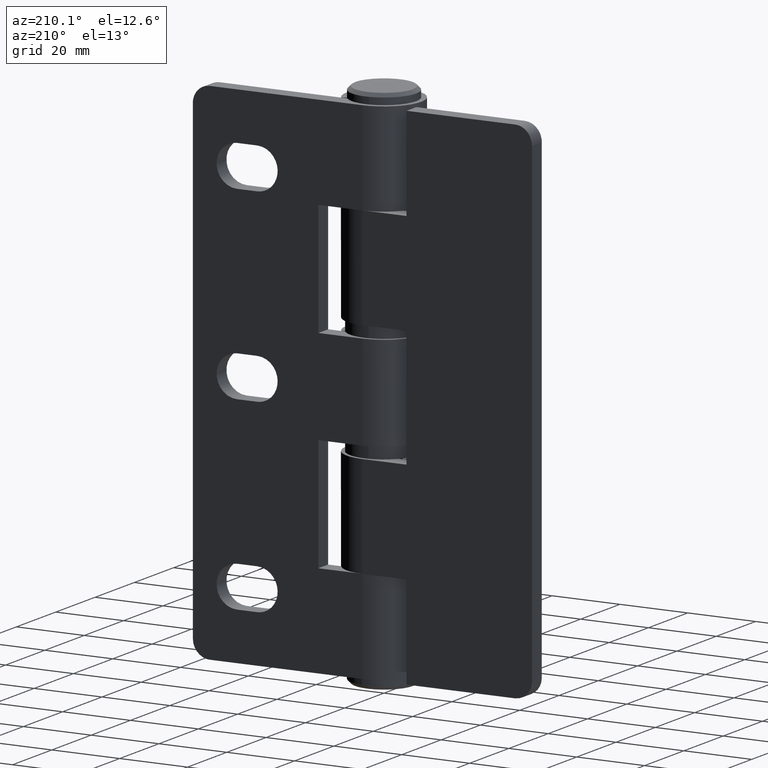
[diagram: clean part render]
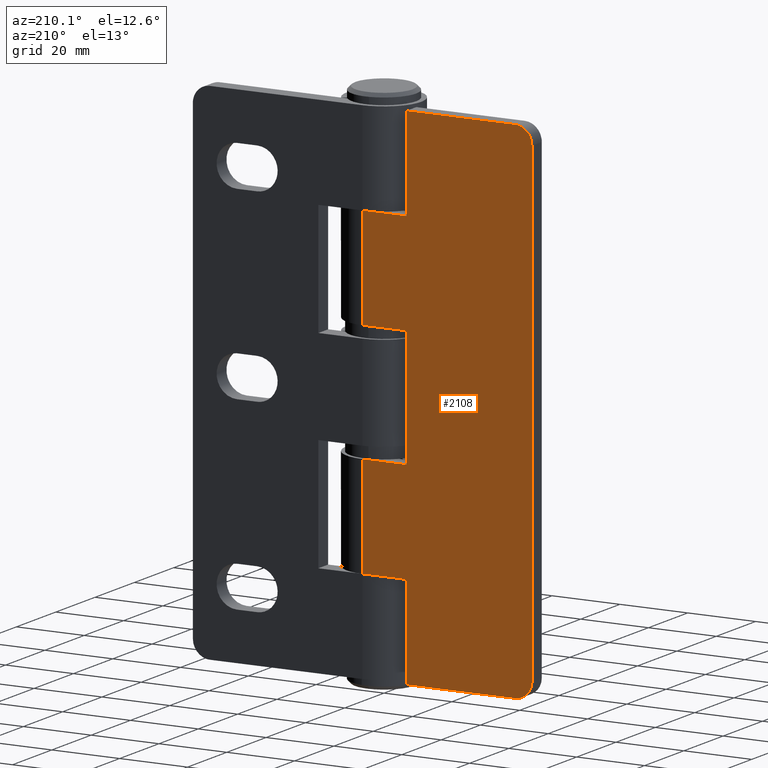
[diagram: same view with one face highlighted and labeled with its STEP entity id]
A machine part, auxiliary view. The second image highlights one B-rep face of the part: STEP entity #2108.
In plain terms, the highlighted face is a freeform B-spline surface patch.
Its self-contained STEP definition (entity closure, byte-faithful):
#1350=CARTESIAN_POINT('',(-13.0,11.0,122.500000000000000));
#1351=VERTEX_POINT('',#1350);
#1352=CARTESIAN_POINT('',(0.0,11.0,122.500000000000000));
#1353=VERTEX_POINT('',#1352);
#1354=CARTESIAN_POINT('',(-13.0,11.0,122.500000000000000));
#1355=CARTESIAN_POINT('',(0.0,11.0,122.500000000000000));
#1356=QUASI_UNIFORM_CURVE('',1,(#1354,#1355),.UNSPECIFIED.,.F.,.U.);
#1357=EDGE_CURVE('',#1351,#1353,#1356,.T.);
#1429=CARTESIAN_POINT('',(-13.0,11.0,150.0));
#1430=VERTEX_POINT('',#1429);
#1431=CARTESIAN_POINT('',(-13.0,11.0,150.0));
#1432=CARTESIAN_POINT('',(-13.0,11.0,122.500000000000000));
#1433=QUASI_UNIFORM_CURVE('',1,(#1431,#1432),.UNSPECIFIED.,.F.,.U.);
#1434=EDGE_CURVE('',#1430,#1351,#1433,.T.);
#1456=CARTESIAN_POINT('',(-13.0,11.0,57.500000000000000));
#1457=VERTEX_POINT('',#1456);
#1458=CARTESIAN_POINT('',(0.0,11.0,57.500000000000000));
#1459=VERTEX_POINT('',#1458);
#1460=CARTESIAN_POINT('',(-13.0,11.0,57.500000000000000));
#1461=CARTESIAN_POINT('',(0.0,11.0,57.500000000000000));
#1462=QUASI_UNIFORM_CURVE('',1,(#1460,#1461),.UNSPECIFIED.,.F.,.U.);
#1463=EDGE_CURVE('',#1457,#1459,#1462,.T.);
#1535=CARTESIAN_POINT('',(-13.0,11.0,92.500000000000000));
#1536=VERTEX_POINT('',#1535);
#1537=CARTESIAN_POINT('',(-13.0,11.0,92.500000000000000));
#1538=CARTESIAN_POINT('',(-13.0,11.0,57.500000000000000));
#1539=QUASI_UNIFORM_CURVE('',1,(#1537,#1538),.UNSPECIFIED.,.F.,.U.);
#1540=EDGE_CURVE('',#1536,#1457,#1539,.T.);
#1563=CARTESIAN_POINT('',(0.0,11.0,92.500000000000000));
#1564=VERTEX_POINT('',#1563);
#1565=CARTESIAN_POINT('',(0.0,11.0,92.500000000000000));
#1566=CARTESIAN_POINT('',(-13.0,11.0,92.500000000000000));
#1567=QUASI_UNIFORM_CURVE('',1,(#1565,#1566),.UNSPECIFIED.,.F.,.U.);
#1568=EDGE_CURVE('',#1564,#1536,#1567,.T.);
#1634=CARTESIAN_POINT('',(-13.0,11.0,0.0));
#1635=VERTEX_POINT('',#1634);
#1641=CARTESIAN_POINT('',(-13.0,11.0,27.500000000000000));
#1642=VERTEX_POINT('',#1641);
#1643=CARTESIAN_POINT('',(-13.0,11.0,27.500000000000000));
#1644=CARTESIAN_POINT('',(-13.0,11.0,0.0));
#1645=QUASI_UNIFORM_CURVE('',1,(#1643,#1644),.UNSPECIFIED.,.F.,.U.);
#1646=EDGE_CURVE('',#1642,#1635,#1645,.T.);
#1669=CARTESIAN_POINT('',(0.0,11.0,27.500000000000000));
#1670=VERTEX_POINT('',#1669);
#1671=CARTESIAN_POINT('',(0.0,11.0,27.500000000000000));
#1672=CARTESIAN_POINT('',(-13.0,11.0,27.500000000000000));
#1673=QUASI_UNIFORM_CURVE('',1,(#1671,#1672),.UNSPECIFIED.,.F.,.U.);
#1674=EDGE_CURVE('',#1670,#1642,#1673,.T.);
#1764=CARTESIAN_POINT('',(-50.0,11.0,5.0));
#1765=VERTEX_POINT('',#1764);
#1771=CARTESIAN_POINT('',(-45.0,11.0,0.0));
#1772=VERTEX_POINT('',#1771);
#1773=CARTESIAN_POINT('',(-45.0,11.0,0.0));
#1774=CARTESIAN_POINT('',(-49.999999999999986,11.0,0.0));
#1775=CARTESIAN_POINT('',(-49.999999999999993,11.0,5.0));
#1783=(BOUNDED_CURVE()B_SPLINE_CURVE(2,(#1773,#1774,#1775),.UNSPECIFIED.,.F.,.U.)CURVE()GEOMETRIC_REPRESENTATION_ITEM()QUASI_UNIFORM_CURVE()RATIONAL_B_SPLINE_CURVE((1.0,0.707106781186548,1.0))REPRESENTATION_ITEM(''));
#1784=EDGE_CURVE('',#1772,#1765,#1783,.T.);
#1825=CARTESIAN_POINT('',(-45.0,11.0,150.0));
#1826=VERTEX_POINT('',#1825);
#1832=CARTESIAN_POINT('',(-50.0,11.0,145.0));
#1833=VERTEX_POINT('',#1832);
#1834=CARTESIAN_POINT('',(-49.999999999999993,11.0,145.0));
#1835=CARTESIAN_POINT('',(-49.999999999999986,11.0,149.999999999999940));
#1836=CARTESIAN_POINT('',(-45.0,11.0,150.0));
#1844=(BOUNDED_CURVE()B_SPLINE_CURVE(2,(#1834,#1835,#1836),.UNSPECIFIED.,.F.,.U.)CURVE()GEOMETRIC_REPRESENTATION_ITEM()QUASI_UNIFORM_CURVE()RATIONAL_B_SPLINE_CURVE((1.0,0.707106781186548,1.0))REPRESENTATION_ITEM(''));
#1845=EDGE_CURVE('',#1833,#1826,#1844,.T.);
#1860=CARTESIAN_POINT('',(-50.0,11.0,145.0));
#1861=CARTESIAN_POINT('',(-50.0,11.0,5.0));
#1862=QUASI_UNIFORM_CURVE('',1,(#1860,#1861),.UNSPECIFIED.,.F.,.U.);
#1863=EDGE_CURVE('',#1833,#1765,#1862,.T.);
#1880=CARTESIAN_POINT('',(-45.0,11.0,0.0));
#1881=CARTESIAN_POINT('',(-13.0,11.0,0.0));
#1882=QUASI_UNIFORM_CURVE('',1,(#1880,#1881),.UNSPECIFIED.,.F.,.U.);
#1883=EDGE_CURVE('',#1772,#1635,#1882,.T.);
#1973=CARTESIAN_POINT('',(0.0,11.0,57.500000000000000));
#1974=CARTESIAN_POINT('',(0.0,11.0,27.500000000000000));
#1975=QUASI_UNIFORM_CURVE('',1,(#1973,#1974),.UNSPECIFIED.,.F.,.U.);
#1976=EDGE_CURVE('',#1459,#1670,#1975,.T.);
#1987=CARTESIAN_POINT('',(-45.0,11.0,150.0));
#1988=CARTESIAN_POINT('',(-13.0,11.0,150.0));
#1989=QUASI_UNIFORM_CURVE('',1,(#1987,#1988),.UNSPECIFIED.,.F.,.U.);
#1990=EDGE_CURVE('',#1826,#1430,#1989,.T.);
#2079=CARTESIAN_POINT('',(0.0,11.0,122.500000000000000));
#2080=CARTESIAN_POINT('',(0.0,11.0,92.500000000000000));
#2081=QUASI_UNIFORM_CURVE('',1,(#2079,#2080),.UNSPECIFIED.,.F.,.U.);
#2082=EDGE_CURVE('',#1353,#1564,#2081,.T.);
#2087=CARTESIAN_POINT('',(-52.497499903090286,11.0,-7.492499709270897));
#2088=CARTESIAN_POINT('',(-52.497499903090286,11.0,157.492503732584400));
#2089=CARTESIAN_POINT('',(2.497501244194802,11.0,-7.492499709270897));
#2090=CARTESIAN_POINT('',(2.497501244194802,11.0,157.492503732584400));
#2091=B_SPLINE_SURFACE_WITH_KNOTS('',1,1,((#2087,#2089),(#2088,#2090)),.UNSPECIFIED.,.F.,.F.,.U.,(2,2),(2,2),(0.0,164.985003441855300),(0.0,54.995001147285102),.UNSPECIFIED.);
#2092=ORIENTED_EDGE('',*,*,#1990,.T.);
#2093=ORIENTED_EDGE('',*,*,#1434,.T.);
#2094=ORIENTED_EDGE('',*,*,#1357,.T.);
#2095=ORIENTED_EDGE('',*,*,#2082,.T.);
#2096=ORIENTED_EDGE('',*,*,#1568,.T.);
#2097=ORIENTED_EDGE('',*,*,#1540,.T.);
#2098=ORIENTED_EDGE('',*,*,#1463,.T.);
#2099=ORIENTED_EDGE('',*,*,#1976,.T.);
#2100=ORIENTED_EDGE('',*,*,#1674,.T.);
#2101=ORIENTED_EDGE('',*,*,#1646,.T.);
#2102=ORIENTED_EDGE('',*,*,#1883,.F.);
#2103=ORIENTED_EDGE('',*,*,#1784,.T.);
#2104=ORIENTED_EDGE('',*,*,#1863,.F.);
#2105=ORIENTED_EDGE('',*,*,#1845,.T.);
#2106=EDGE_LOOP('',(#2092,#2093,#2094,#2095,#2096,#2097,#2098,#2099,#2100,#2101,#2102,#2103,#2104,#2105));
#2107=FACE_OUTER_BOUND('',#2106,.T.);
#2108=ADVANCED_FACE('',(#2107),#2091,.T.);